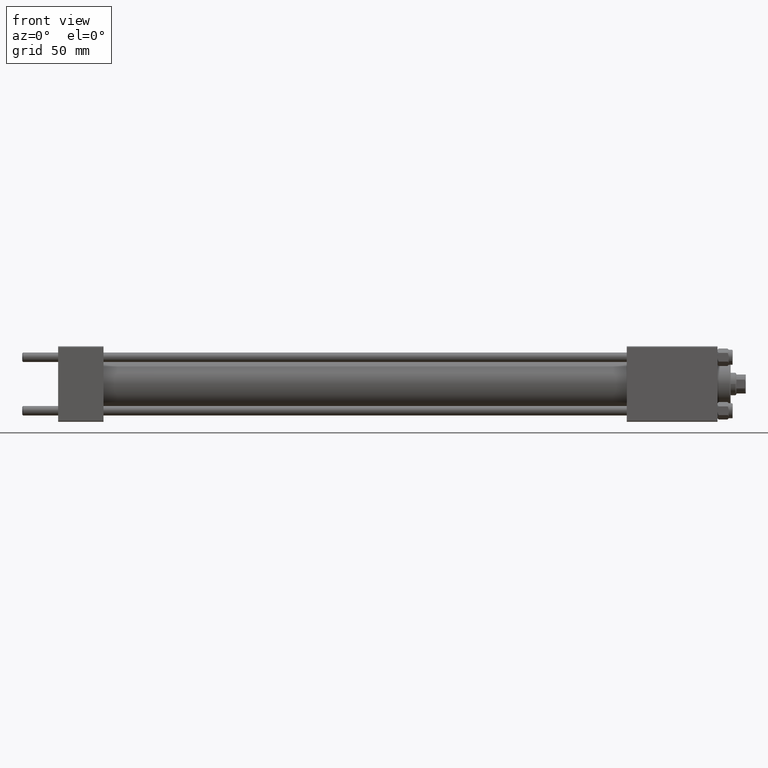
[diagram: clean part render]
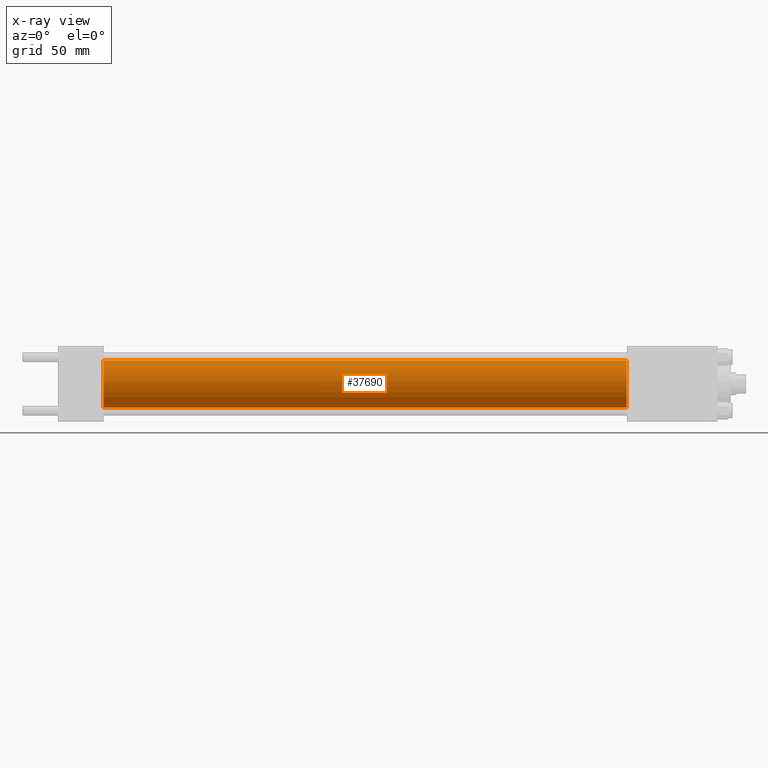
[diagram: x-ray — body ghosted, one internal face saturated and labeled with its STEP entity id]
A machine part, front view, then the same camera in x-ray: the body is ghosted and one INTERNAL B-rep face — a face not visible from any outside direction — is saturated and labeled: STEP entity #37690.
In plain terms, the highlighted cylindrical surface (edge-blend (fillet) strip) has radius 12.5 mm, axis along (-1, -0, -0).
Its self-contained STEP definition (entity closure, byte-faithful):
#364 = CARTESIAN_POINT ( 'NONE',  ( 301.0000000000000568, 1.530808498934191127E-15, -12.49999999999999645 ) ) ;
#809 = VERTEX_POINT ( 'NONE', #364 ) ;
#2243 = CARTESIAN_POINT ( 'NONE',  ( 301.0000000000000568, 0.000000000000000000, 12.49999999999999645 ) ) ;
#5378 = CARTESIAN_POINT ( 'NONE',  ( 24.00000000000000000, 1.530808498934191127E-15, -12.49999999999999645 ) ) ;
#5382 = DIRECTION ( 'NONE',  ( 1.000000000000000000, 0.000000000000000000, 0.000000000000000000 ) ) ;
#7341 = CARTESIAN_POINT ( 'NONE',  ( 301.0000000000000568, 0.000000000000000000, 0.000000000000000000 ) ) ;
#7729 = CIRCLE ( 'NONE', #44688, 12.49999999999999645 ) ;
#9052 = DIRECTION ( 'NONE',  ( 1.000000000000000000, 0.000000000000000000, 0.000000000000000000 ) ) ;
#9295 = DIRECTION ( 'NONE',  ( 0.000000000000000000, 0.000000000000000000, -1.000000000000000000 ) ) ;
#9417 = CARTESIAN_POINT ( 'NONE',  ( 24.00000000000000000, 0.000000000000000000, 12.49999999999999645 ) ) ;
#10651 = EDGE_CURVE ( 'NONE', #19175, #12055, #29414, .T. ) ;
#11605 = DIRECTION ( 'NONE',  ( 0.000000000000000000, 0.000000000000000000, 1.000000000000000000 ) ) ;
#12055 = VERTEX_POINT ( 'NONE', #9417 ) ;
#12772 = EDGE_LOOP ( 'NONE', ( #46534, #42410, #13719, #42069 ) ) ;
#13472 = DIRECTION ( 'NONE',  ( -1.000000000000000000, -0.000000000000000000, -0.000000000000000000 ) ) ;
#13719 = ORIENTED_EDGE ( 'NONE', *, *, #29192, .F. ) ;
#14896 = DIRECTION ( 'NONE',  ( -1.000000000000000000, -0.000000000000000000, -0.000000000000000000 ) ) ;
#16353 = EDGE_CURVE ( 'NONE', #19175, #809, #42021, .T. ) ;
#19175 = VERTEX_POINT ( 'NONE', #29319 ) ;
#20088 = EDGE_CURVE ( 'NONE', #809, #45204, #28586, .T. ) ;
#21002 = CARTESIAN_POINT ( 'NONE',  ( 24.00000000000000000, 0.000000000000000000, 0.000000000000000000 ) ) ;
#21074 = VECTOR ( 'NONE', #29667, 1000.000000000000000 ) ;
#28586 = LINE ( 'NONE', #43946, #33269 ) ;
#29192 = EDGE_CURVE ( 'NONE', #12055, #45204, #7729, .T. ) ;
#29319 = CARTESIAN_POINT ( 'NONE',  ( 301.0000000000000568, 0.000000000000000000, 12.49999999999999645 ) ) ;
#29414 = LINE ( 'NONE', #2243, #21074 ) ;
#29667 = DIRECTION ( 'NONE',  ( -1.000000000000000000, -0.000000000000000000, -0.000000000000000000 ) ) ;
#30250 = FACE_OUTER_BOUND ( 'NONE', #12772, .T. ) ;
#33269 = VECTOR ( 'NONE', #13472, 1000.000000000000000 ) ;
#37690 = ADVANCED_FACE ( 'NONE', ( #30250 ), #42082, .F. ) ;
#40269 = CARTESIAN_POINT ( 'NONE',  ( 301.0000000000000568, 0.000000000000000000, 0.000000000000000000 ) ) ;
#41218 = AXIS2_PLACEMENT_3D ( 'NONE', #40269, #9052, #9295 ) ;
#41431 = AXIS2_PLACEMENT_3D ( 'NONE', #7341, #14896, #11605 ) ;
#42021 = CIRCLE ( 'NONE', #41218, 12.49999999999999645 ) ;
#42069 = ORIENTED_EDGE ( 'NONE', *, *, #10651, .F. ) ;
#42082 = CYLINDRICAL_SURFACE ( 'NONE', #41431, 12.49999999999999645 ) ;
#42410 = ORIENTED_EDGE ( 'NONE', *, *, #20088, .T. ) ;
#43946 = CARTESIAN_POINT ( 'NONE',  ( 301.0000000000000568, 1.530808498934191127E-15, -12.49999999999999645 ) ) ;
#44688 = AXIS2_PLACEMENT_3D ( 'NONE', #21002, #5382, #47434 ) ;
#45204 = VERTEX_POINT ( 'NONE', #5378 ) ;
#46534 = ORIENTED_EDGE ( 'NONE', *, *, #16353, .T. ) ;
#47434 = DIRECTION ( 'NONE',  ( 0.000000000000000000, 0.000000000000000000, -1.000000000000000000 ) ) ;